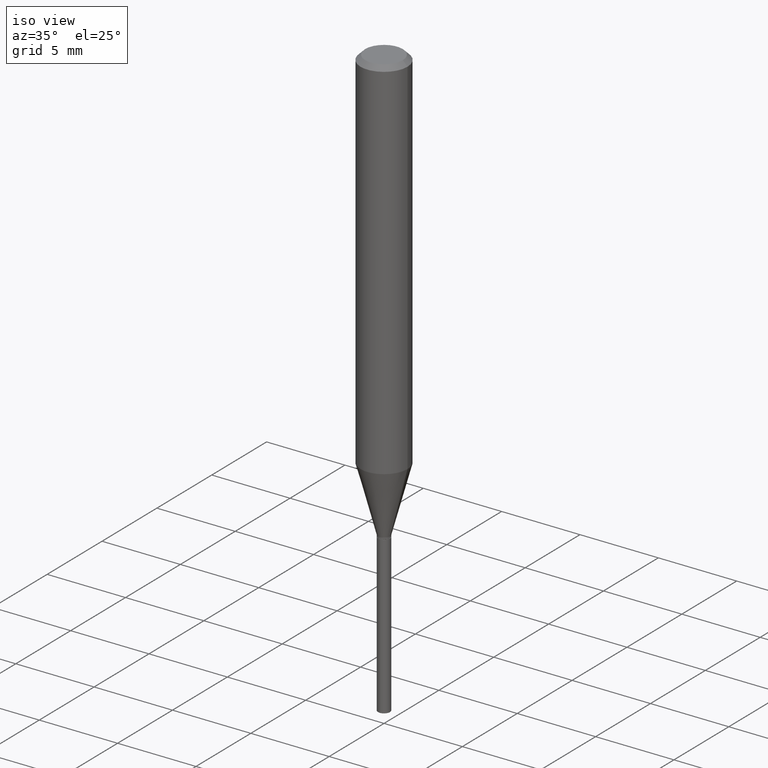
[diagram: clean part render]
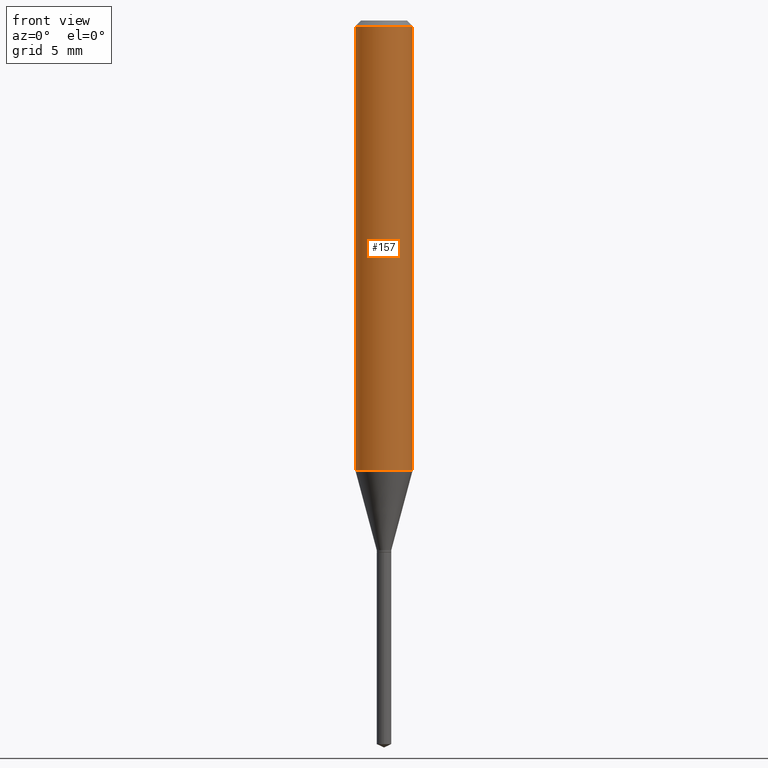
[diagram: tour spotlight — one face highlighted and labeled with its STEP entity id]
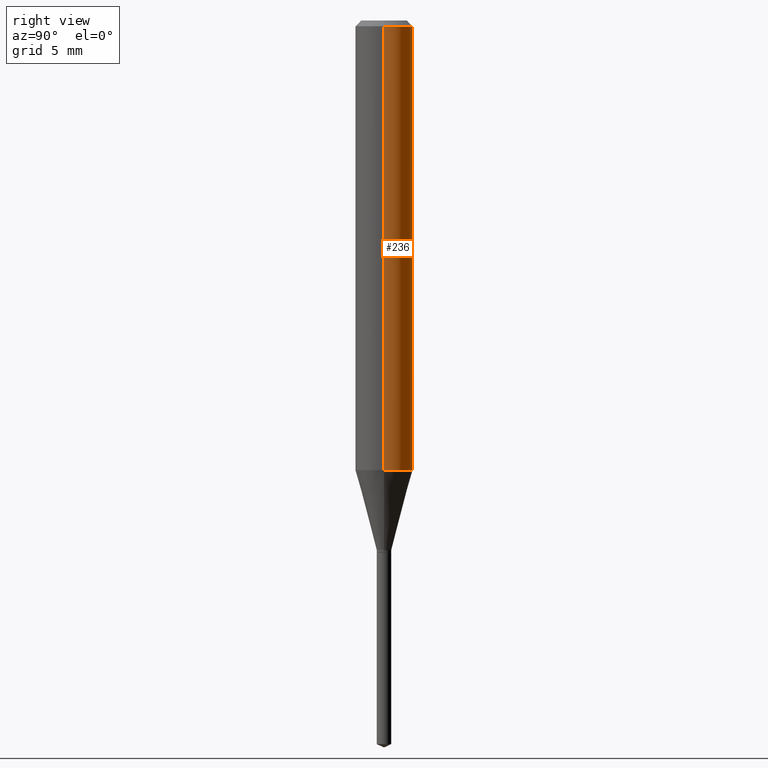
[diagram: tour spotlight — one face highlighted and labeled with its STEP entity id]
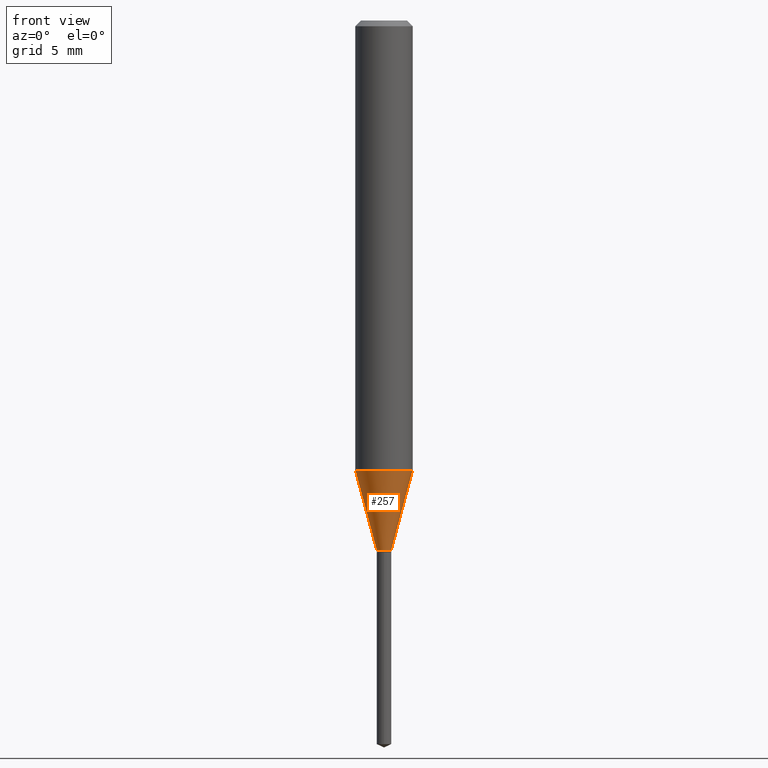
[diagram: tour spotlight — one face highlighted and labeled with its STEP entity id]
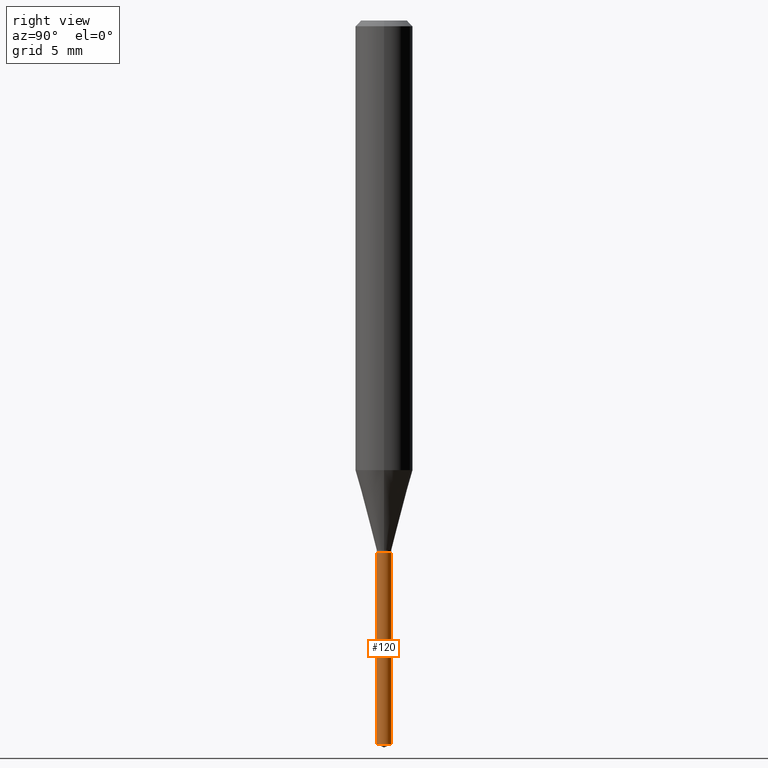
[diagram: tour spotlight — one face highlighted and labeled with its STEP entity id]
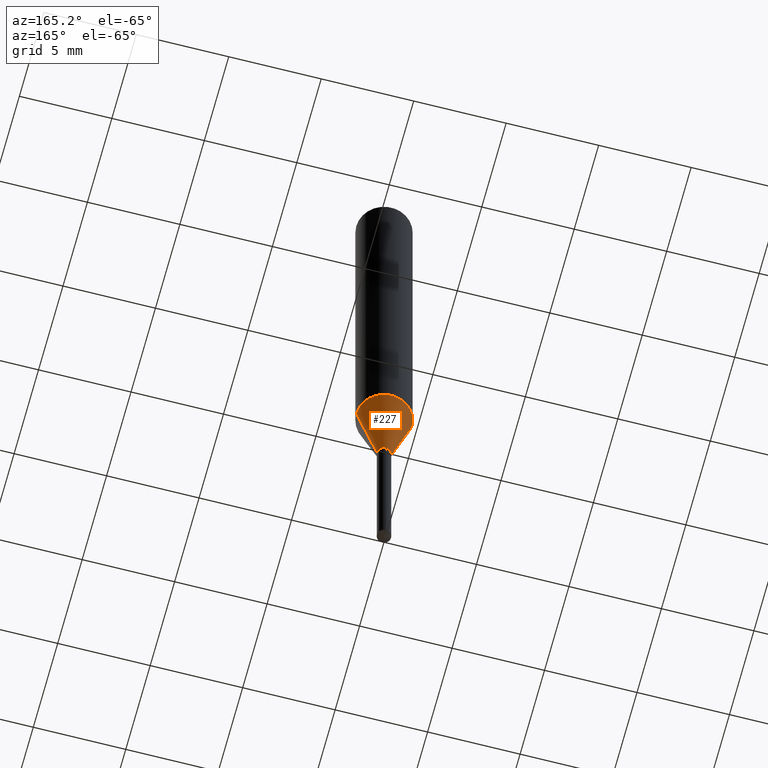
[diagram: tour spotlight — one face highlighted and labeled with its STEP entity id]
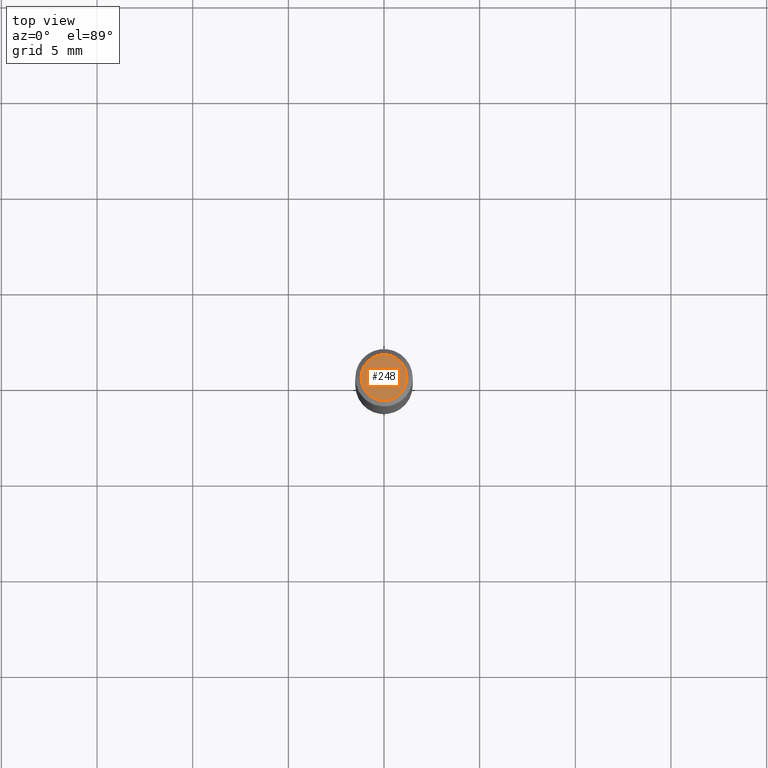
[diagram: tour spotlight — one face highlighted and labeled with its STEP entity id]
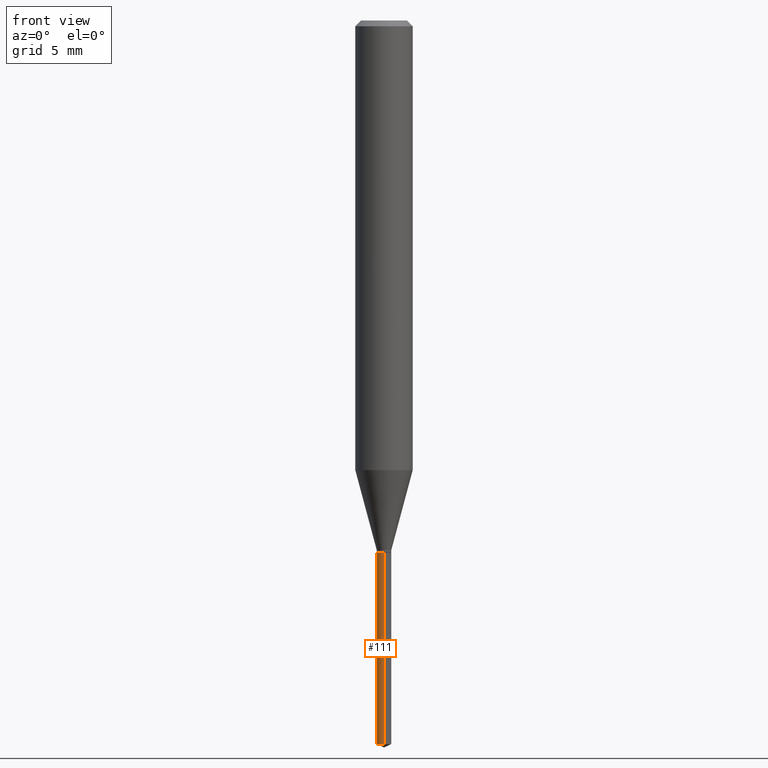
[diagram: tour spotlight — one face highlighted and labeled with its STEP entity id]
A machine part: a face-by-face anatomy tour. The part has 17 B-rep faces; the first image is the clean iso view, then the 7 largest visible faces are spotlighted one at a time (largest first), each with its STEP entity span.

Face 1 — front view, entity #157. In plain terms, the highlighted cylindrical surface (edge-blend (fillet) strip) has radius 1.4999 mm, axis along (-0, 0, 1).
Definition (entity closure, byte-faithful):
#1 = DIRECTION ( 'NONE',  ( 1.000000000000000000, -6.982962677686266711E-15, 0.000000000000000000 ) ) ;
#13 = CARTESIAN_POINT ( 'NONE',  ( -0.05905000000000011628, -2.811499162287049151E-15, -0.9254165593862120343 ) ) ;
#19 = CYLINDRICAL_SURFACE ( 'NONE', #134, 0.05905000000000006077 ) ;
#30 = CARTESIAN_POINT ( 'NONE',  ( 2.263077328706156631E-29, -3.231074647753389433E-15, -0.9254165593862120343 ) ) ;
#41 = VERTEX_POINT ( 'NONE', #13 ) ;
#54 = EDGE_LOOP ( 'NONE', ( #136, #186, #318, #77 ) ) ;
#62 = CARTESIAN_POINT ( 'NONE',  ( 0.000000000000000000, 0.000000000000000000, 0.000000000000000000 ) ) ;
#69 = DIRECTION ( 'NONE',  ( -2.445468806185136597E-29, 3.491481338843145583E-15, 1.000000000000000000 ) ) ;
#75 = VERTEX_POINT ( 'NONE', #472 ) ;
#77 = ORIENTED_EDGE ( 'NONE', *, *, #160, .F. ) ;
#84 = AXIS2_PLACEMENT_3D ( 'NONE', #30, #184, #1 ) ;
#134 = AXIS2_PLACEMENT_3D ( 'NONE', #62, #488, #483 ) ;
#136 = ORIENTED_EDGE ( 'NONE', *, *, #376, .F. ) ;
#148 = DIRECTION ( 'NONE',  ( 1.000000000000000000, -6.982962677686266711E-15, 0.000000000000000000 ) ) ;
#157 = ADVANCED_FACE ( 'NONE', ( #256 ), #19, .T. ) ;
#160 = EDGE_CURVE ( 'NONE', #75, #453, #346, .T. ) ;
#163 = LINE ( 'NONE', #245, #489 ) ;
#181 = CARTESIAN_POINT ( 'NONE',  ( 0.05904999999999999832, -4.535783407291118600E-16, -0.01181000000000007044 ) ) ;
#184 = DIRECTION ( 'NONE',  ( -2.445468806185136597E-29, 3.491481338843145583E-15, 1.000000000000000000 ) ) ;
#186 = ORIENTED_EDGE ( 'NONE', *, *, #331, .T. ) ;
#222 = CIRCLE ( 'NONE', #84, 0.05905000000000011628 ) ;
#225 = CARTESIAN_POINT ( 'NONE',  ( 0.05905000000000006077, -4.123439461173744764E-16, 2.879382386107503023E-30 ) ) ;
#226 = CARTESIAN_POINT ( 'NONE',  ( 2.888098660104663766E-31, -4.123439461173779647E-17, -0.01181000000000007044 ) ) ;
#245 = CARTESIAN_POINT ( 'NONE',  ( -0.05905000000000006077, 4.195754854663395916E-16, -2.904631170795524694E-30 ) ) ;
#250 = DIRECTION ( 'NONE',  ( -2.445468806185136877E-29, 3.491481338843145188E-15, 1.000000000000000000 ) ) ;
#256 = FACE_OUTER_BOUND ( 'NONE', #54, .T. ) ;
#264 = DIRECTION ( 'NONE',  ( -2.445468806185136877E-29, 3.491481338843145188E-15, 1.000000000000000000 ) ) ;
#290 = EDGE_CURVE ( 'NONE', #348, #453, #405, .T. ) ;
#318 = ORIENTED_EDGE ( 'NONE', *, *, #290, .T. ) ;
#331 = EDGE_CURVE ( 'NONE', #41, #348, #222, .T. ) ;
#346 = CIRCLE ( 'NONE', #408, 0.05904999999999999832 ) ;
#348 = VERTEX_POINT ( 'NONE', #471 ) ;
#376 = EDGE_CURVE ( 'NONE', #41, #75, #163, .T. ) ;
#393 = VECTOR ( 'NONE', #264, 39.37007874015748143 ) ;
#405 = LINE ( 'NONE', #225, #393 ) ;
#408 = AXIS2_PLACEMENT_3D ( 'NONE', #226, #69, #148 ) ;
#453 = VERTEX_POINT ( 'NONE', #181 ) ;
#471 = CARTESIAN_POINT ( 'NONE',  ( 0.05905000000000011628, -3.643418593870763564E-15, -0.9254165593862120343 ) ) ;
#472 = CARTESIAN_POINT ( 'NONE',  ( -0.05904999999999999832, -1.216579035716223102E-15, -0.01181000000000007044 ) ) ;
#483 = DIRECTION ( 'NONE',  ( 1.000000000000000000, -6.982962677686266711E-15, 4.876176775795935793E-29 ) ) ;
#488 = DIRECTION ( 'NONE',  ( -2.445468806185136597E-29, 3.491481338843145583E-15, 1.000000000000000000 ) ) ;
#489 = VECTOR ( 'NONE', #250, 39.37007874015748143 ) ;

Face 2 — right view, entity #236. In plain terms, the highlighted cylindrical surface (edge-blend (fillet) strip) has radius 1.4999 mm, axis along (-0, 0, 1).
Definition (entity closure, byte-faithful):
#6 = CIRCLE ( 'NONE', #334, 0.05904999999999999832 ) ;
#12 = FACE_OUTER_BOUND ( 'NONE', #224, .T. ) ;
#13 = CARTESIAN_POINT ( 'NONE',  ( -0.05905000000000011628, -2.811499162287049151E-15, -0.9254165593862120343 ) ) ;
#16 = DIRECTION ( 'NONE',  ( -2.445468806185136597E-29, 3.491481338843145583E-15, 1.000000000000000000 ) ) ;
#41 = VERTEX_POINT ( 'NONE', #13 ) ;
#49 = ORIENTED_EDGE ( 'NONE', *, *, #290, .F. ) ;
#75 = VERTEX_POINT ( 'NONE', #472 ) ;
#81 = EDGE_CURVE ( 'NONE', #453, #75, #6, .T. ) ;
#163 = LINE ( 'NONE', #245, #489 ) ;
#164 = DIRECTION ( 'NONE',  ( -2.445468806185136597E-29, 3.491481338843145583E-15, 1.000000000000000000 ) ) ;
#166 = DIRECTION ( 'NONE',  ( -2.445468806185136597E-29, 3.491481338843145583E-15, 1.000000000000000000 ) ) ;
#170 = DIRECTION ( 'NONE',  ( 1.000000000000000000, -6.982962677686266711E-15, 0.000000000000000000 ) ) ;
#171 = CARTESIAN_POINT ( 'NONE',  ( 0.000000000000000000, 0.000000000000000000, 0.000000000000000000 ) ) ;
#181 = CARTESIAN_POINT ( 'NONE',  ( 0.05904999999999999832, -4.535783407291118600E-16, -0.01181000000000007044 ) ) ;
#224 = EDGE_LOOP ( 'NONE', ( #280, #386, #277, #49 ) ) ;
#225 = CARTESIAN_POINT ( 'NONE',  ( 0.05905000000000006077, -4.123439461173744764E-16, 2.879382386107503023E-30 ) ) ;
#233 = AXIS2_PLACEMENT_3D ( 'NONE', #171, #16, #389 ) ;
#236 = ADVANCED_FACE ( 'NONE', ( #12 ), #286, .T. ) ;
#245 = CARTESIAN_POINT ( 'NONE',  ( -0.05905000000000006077, 4.195754854663395916E-16, -2.904631170795524694E-30 ) ) ;
#250 = DIRECTION ( 'NONE',  ( -2.445468806185136877E-29, 3.491481338843145188E-15, 1.000000000000000000 ) ) ;
#259 = CARTESIAN_POINT ( 'NONE',  ( 2.888098660104663766E-31, -4.123439461173779647E-17, -0.01181000000000007044 ) ) ;
#264 = DIRECTION ( 'NONE',  ( -2.445468806185136877E-29, 3.491481338843145188E-15, 1.000000000000000000 ) ) ;
#277 = ORIENTED_EDGE ( 'NONE', *, *, #81, .F. ) ;
#280 = ORIENTED_EDGE ( 'NONE', *, *, #475, .T. ) ;
#283 = DIRECTION ( 'NONE',  ( 1.000000000000000000, -6.982962677686266711E-15, 0.000000000000000000 ) ) ;
#286 = CYLINDRICAL_SURFACE ( 'NONE', #233, 0.05905000000000006077 ) ;
#290 = EDGE_CURVE ( 'NONE', #348, #453, #405, .T. ) ;
#334 = AXIS2_PLACEMENT_3D ( 'NONE', #259, #166, #170 ) ;
#335 = CARTESIAN_POINT ( 'NONE',  ( 2.263077328706156631E-29, -3.231074647753389433E-15, -0.9254165593862120343 ) ) ;
#347 = CIRCLE ( 'NONE', #410, 0.05905000000000011628 ) ;
#348 = VERTEX_POINT ( 'NONE', #471 ) ;
#376 = EDGE_CURVE ( 'NONE', #41, #75, #163, .T. ) ;
#386 = ORIENTED_EDGE ( 'NONE', *, *, #376, .T. ) ;
#389 = DIRECTION ( 'NONE',  ( 1.000000000000000000, -6.982962677686266711E-15, 4.876176775795935793E-29 ) ) ;
#393 = VECTOR ( 'NONE', #264, 39.37007874015748143 ) ;
#405 = LINE ( 'NONE', #225, #393 ) ;
#410 = AXIS2_PLACEMENT_3D ( 'NONE', #335, #164, #283 ) ;
#453 = VERTEX_POINT ( 'NONE', #181 ) ;
#471 = CARTESIAN_POINT ( 'NONE',  ( 0.05905000000000011628, -3.643418593870763564E-15, -0.9254165593862120343 ) ) ;
#472 = CARTESIAN_POINT ( 'NONE',  ( -0.05904999999999999832, -1.216579035716223102E-15, -0.01181000000000007044 ) ) ;
#475 = EDGE_CURVE ( 'NONE', #348, #41, #347, .T. ) ;
#489 = VECTOR ( 'NONE', #250, 39.37007874015748143 ) ;

Face 3 — front view, entity #257. In plain terms, the highlighted conical surface has half-angle 15 deg.
Definition (entity closure, byte-faithful):
#1 = DIRECTION ( 'NONE',  ( 1.000000000000000000, -6.982962677686266711E-15, 0.000000000000000000 ) ) ;
#4 = CARTESIAN_POINT ( 'NONE',  ( 0.01494999999999994424, -3.910109951370437521E-15, -1.089999999999999858 ) ) ;
#13 = CARTESIAN_POINT ( 'NONE',  ( -0.05905000000000011628, -2.811499162287049151E-15, -0.9254165593862120343 ) ) ;
#20 = VECTOR ( 'NONE', #221, 39.37007874015748854 ) ;
#25 = CARTESIAN_POINT ( 'NONE',  ( 2.665560998741798263E-29, -3.805714659339028452E-15, -1.089999999999999858 ) ) ;
#30 = CARTESIAN_POINT ( 'NONE',  ( 2.263077328706156631E-29, -3.231074647753389433E-15, -0.9254165593862120343 ) ) ;
#35 = ORIENTED_EDGE ( 'NONE', *, *, #67, .T. ) ;
#41 = VERTEX_POINT ( 'NONE', #13 ) ;
#63 = CARTESIAN_POINT ( 'NONE',  ( -0.01494999999999994424, -3.699488520342893341E-15, -1.089999999999999858 ) ) ;
#67 = EDGE_CURVE ( 'NONE', #465, #348, #208, .T. ) ;
#84 = AXIS2_PLACEMENT_3D ( 'NONE', #30, #184, #1 ) ;
#92 = AXIS2_PLACEMENT_3D ( 'NONE', #25, #482, #265 ) ;
#101 = DIRECTION ( 'NONE',  ( 1.000000000000000000, -6.982962677686271444E-15, 0.000000000000000000 ) ) ;
#142 = CARTESIAN_POINT ( 'NONE',  ( 2.665560998741798263E-29, -3.805714659339028452E-15, -1.089999999999999858 ) ) ;
#177 = EDGE_CURVE ( 'NONE', #241, #465, #261, .T. ) ;
#179 = AXIS2_PLACEMENT_3D ( 'NONE', #142, #478, #101 ) ;
#184 = DIRECTION ( 'NONE',  ( -2.445468806185136597E-29, 3.491481338843145583E-15, 1.000000000000000000 ) ) ;
#193 = ORIENTED_EDGE ( 'NONE', *, *, #205, .F. ) ;
#205 = EDGE_CURVE ( 'NONE', #241, #41, #406, .T. ) ;
#206 = CARTESIAN_POINT ( 'NONE',  ( -0.01494999999999994424, -3.706471483020580144E-15, -1.089999999999999858 ) ) ;
#208 = LINE ( 'NONE', #321, #300 ) ;
#221 = DIRECTION ( 'NONE',  ( -0.2588190451025212391, 5.211531920934549464E-15, 0.9659258262890679791 ) ) ;
#222 = CIRCLE ( 'NONE', #84, 0.05905000000000011628 ) ;
#241 = VERTEX_POINT ( 'NONE', #206 ) ;
#257 = ADVANCED_FACE ( 'NONE', ( #480 ), #312, .T. ) ;
#261 = CIRCLE ( 'NONE', #92, 0.01494999999999994424 ) ;
#265 = DIRECTION ( 'NONE',  ( 1.000000000000000000, -6.982962677686271444E-15, 0.000000000000000000 ) ) ;
#300 = VECTOR ( 'NONE', #364, 39.37007874015748854 ) ;
#309 = ORIENTED_EDGE ( 'NONE', *, *, #177, .T. ) ;
#312 = CONICAL_SURFACE ( 'NONE', #179, 0.01494999999999994424, 0.2617993877991499629 ) ;
#321 = CARTESIAN_POINT ( 'NONE',  ( 0.01494999999999994424, -3.910109951370437521E-15, -1.089999999999999858 ) ) ;
#331 = EDGE_CURVE ( 'NONE', #41, #348, #222, .T. ) ;
#345 = EDGE_LOOP ( 'NONE', ( #193, #309, #35, #350 ) ) ;
#348 = VERTEX_POINT ( 'NONE', #471 ) ;
#350 = ORIENTED_EDGE ( 'NONE', *, *, #331, .F. ) ;
#364 = DIRECTION ( 'NONE',  ( 0.2588190451025212391, 1.565188264969622362E-15, 0.9659258262890679791 ) ) ;
#406 = LINE ( 'NONE', #63, #20 ) ;
#465 = VERTEX_POINT ( 'NONE', #4 ) ;
#471 = CARTESIAN_POINT ( 'NONE',  ( 0.05905000000000011628, -3.643418593870763564E-15, -0.9254165593862120343 ) ) ;
#478 = DIRECTION ( 'NONE',  ( -2.445468806185136597E-29, 3.491481338843145583E-15, 1.000000000000000000 ) ) ;
#480 = FACE_OUTER_BOUND ( 'NONE', #345, .T. ) ;
#482 = DIRECTION ( 'NONE',  ( -2.445468806185136597E-29, 3.491481338843145583E-15, 1.000000000000000000 ) ) ;

Face 4 — right view, entity #120. In plain terms, the highlighted cylindrical surface (edge-blend (fillet) strip) has radius 0.3797 mm, axis along (-0, 0, 1).
Definition (entity closure, byte-faithful):
#32 = AXIS2_PLACEMENT_3D ( 'NONE', #220, #307, #303 ) ;
#79 = VERTEX_POINT ( 'NONE', #473 ) ;
#88 = CARTESIAN_POINT ( 'NONE',  ( 1.062261389961617356E-16, 0.01494999999999617815, -1.094499999999999806 ) ) ;
#91 = LINE ( 'NONE', #88, #178 ) ;
#98 = CARTESIAN_POINT ( 'NONE',  ( 1.062261389961713869E-16, 0.01494999999999480425, -1.489128700510583103 ) ) ;
#100 = CIRCLE ( 'NONE', #461, 0.01494999999999999975 ) ;
#114 = AXIS2_PLACEMENT_3D ( 'NONE', #217, #294, #477 ) ;
#120 = ADVANCED_FACE ( 'NONE', ( #353 ), #287, .T. ) ;
#121 = ORIENTED_EDGE ( 'NONE', *, *, #426, .F. ) ;
#129 = ORIENTED_EDGE ( 'NONE', *, *, #137, .T. ) ;
#135 = VECTOR ( 'NONE', #246, 39.37007874015748143 ) ;
#137 = EDGE_CURVE ( 'NONE', #270, #380, #91, .T. ) ;
#144 = LINE ( 'NONE', #192, #135 ) ;
#168 = EDGE_CURVE ( 'NONE', #79, #380, #260, .T. ) ;
#169 = ORIENTED_EDGE ( 'NONE', *, *, #295, .T. ) ;
#178 = VECTOR ( 'NONE', #213, 39.37007874015748143 ) ;
#180 = CARTESIAN_POINT ( 'NONE',  ( 3.641614592596127873E-29, -5.199269641379409122E-15, -1.489128700510583103 ) ) ;
#192 = CARTESIAN_POINT ( 'NONE',  ( -1.043952920313829132E-16, -0.01495000000000382308, -1.094499999999999806 ) ) ;
#203 = CARTESIAN_POINT ( 'NONE',  ( 1.062261389961714608E-16, 0.01494999999999617989, -1.094499999999999806 ) ) ;
#213 = DIRECTION ( 'NONE',  ( -2.445460715294871217E-29, 3.491492925458510144E-15, 1.000000000000000000 ) ) ;
#217 = CARTESIAN_POINT ( 'NONE',  ( 2.676565608369631794E-29, -3.821426325363822773E-15, -1.094499999999999806 ) ) ;
#220 = CARTESIAN_POINT ( 'NONE',  ( 2.676565608369631794E-29, -3.821426325363822773E-15, -1.094499999999999806 ) ) ;
#246 = DIRECTION ( 'NONE',  ( -2.445460715294871217E-29, 3.491492925458510144E-15, 1.000000000000000000 ) ) ;
#260 = CIRCLE ( 'NONE', #32, 0.01494999999999999975 ) ;
#270 = VERTEX_POINT ( 'NONE', #98 ) ;
#287 = CYLINDRICAL_SURFACE ( 'NONE', #114, 0.01494999999999999975 ) ;
#294 = DIRECTION ( 'NONE',  ( -2.445460715294871217E-29, 3.491492925458510144E-15, 1.000000000000000000 ) ) ;
#295 = EDGE_CURVE ( 'NONE', #422, #270, #100, .T. ) ;
#303 = DIRECTION ( 'NONE',  ( -6.982962677686266711E-15, -1.000000000000000000, 0.000000000000000000 ) ) ;
#307 = DIRECTION ( 'NONE',  ( -2.445460715294871217E-29, 3.491492925458510144E-15, 1.000000000000000000 ) ) ;
#311 = EDGE_LOOP ( 'NONE', ( #169, #129, #315, #121 ) ) ;
#315 = ORIENTED_EDGE ( 'NONE', *, *, #168, .F. ) ;
#353 = FACE_OUTER_BOUND ( 'NONE', #311, .T. ) ;
#380 = VERTEX_POINT ( 'NONE', #203 ) ;
#422 = VERTEX_POINT ( 'NONE', #487 ) ;
#426 = EDGE_CURVE ( 'NONE', #422, #79, #144, .T. ) ;
#450 = DIRECTION ( 'NONE',  ( -2.445460715294871217E-29, 3.491492925458510144E-15, 1.000000000000000000 ) ) ;
#461 = AXIS2_PLACEMENT_3D ( 'NONE', #180, #450, #476 ) ;
#473 = CARTESIAN_POINT ( 'NONE',  ( -1.043952920313829132E-16, -0.01495000000000382308, -1.094499999999999806 ) ) ;
#476 = DIRECTION ( 'NONE',  ( -6.982962677686266711E-15, -1.000000000000000000, 0.000000000000000000 ) ) ;
#477 = DIRECTION ( 'NONE',  ( -6.982962677686266711E-15, -1.000000000000000000, 0.000000000000000000 ) ) ;
#487 = CARTESIAN_POINT ( 'NONE',  ( -1.043952920313732866E-16, -0.01495000000000520218, -1.489128700510583103 ) ) ;

Face 5 — auxiliary view, entity #227. In plain terms, the highlighted conical surface has half-angle 15 deg.
Definition (entity closure, byte-faithful):
#4 = CARTESIAN_POINT ( 'NONE',  ( 0.01494999999999994424, -3.910109951370437521E-15, -1.089999999999999858 ) ) ;
#9 = ORIENTED_EDGE ( 'NONE', *, *, #475, .F. ) ;
#13 = CARTESIAN_POINT ( 'NONE',  ( -0.05905000000000011628, -2.811499162287049151E-15, -0.9254165593862120343 ) ) ;
#20 = VECTOR ( 'NONE', #221, 39.37007874015748854 ) ;
#28 = EDGE_CURVE ( 'NONE', #465, #241, #362, .T. ) ;
#41 = VERTEX_POINT ( 'NONE', #13 ) ;
#63 = CARTESIAN_POINT ( 'NONE',  ( -0.01494999999999994424, -3.699488520342893341E-15, -1.089999999999999858 ) ) ;
#67 = EDGE_CURVE ( 'NONE', #465, #348, #208, .T. ) ;
#96 = DIRECTION ( 'NONE',  ( 1.000000000000000000, -6.982962677686271444E-15, 0.000000000000000000 ) ) ;
#106 = ORIENTED_EDGE ( 'NONE', *, *, #67, .F. ) ;
#128 = DIRECTION ( 'NONE',  ( 1.000000000000000000, -6.982962677686271444E-15, 0.000000000000000000 ) ) ;
#156 = ORIENTED_EDGE ( 'NONE', *, *, #28, .T. ) ;
#164 = DIRECTION ( 'NONE',  ( -2.445468806185136597E-29, 3.491481338843145583E-15, 1.000000000000000000 ) ) ;
#205 = EDGE_CURVE ( 'NONE', #241, #41, #406, .T. ) ;
#206 = CARTESIAN_POINT ( 'NONE',  ( -0.01494999999999994424, -3.706471483020580144E-15, -1.089999999999999858 ) ) ;
#208 = LINE ( 'NONE', #321, #300 ) ;
#221 = DIRECTION ( 'NONE',  ( -0.2588190451025212391, 5.211531920934549464E-15, 0.9659258262890679791 ) ) ;
#227 = ADVANCED_FACE ( 'NONE', ( #368 ), #430, .T. ) ;
#229 = EDGE_LOOP ( 'NONE', ( #156, #455, #9, #106 ) ) ;
#231 = AXIS2_PLACEMENT_3D ( 'NONE', #470, #444, #96 ) ;
#241 = VERTEX_POINT ( 'NONE', #206 ) ;
#283 = DIRECTION ( 'NONE',  ( 1.000000000000000000, -6.982962677686266711E-15, 0.000000000000000000 ) ) ;
#300 = VECTOR ( 'NONE', #364, 39.37007874015748854 ) ;
#321 = CARTESIAN_POINT ( 'NONE',  ( 0.01494999999999994424, -3.910109951370437521E-15, -1.089999999999999858 ) ) ;
#335 = CARTESIAN_POINT ( 'NONE',  ( 2.263077328706156631E-29, -3.231074647753389433E-15, -0.9254165593862120343 ) ) ;
#347 = CIRCLE ( 'NONE', #410, 0.05905000000000011628 ) ;
#348 = VERTEX_POINT ( 'NONE', #471 ) ;
#362 = CIRCLE ( 'NONE', #231, 0.01494999999999994424 ) ;
#364 = DIRECTION ( 'NONE',  ( 0.2588190451025212391, 1.565188264969622362E-15, 0.9659258262890679791 ) ) ;
#368 = FACE_OUTER_BOUND ( 'NONE', #229, .T. ) ;
#369 = AXIS2_PLACEMENT_3D ( 'NONE', #409, #469, #128 ) ;
#406 = LINE ( 'NONE', #63, #20 ) ;
#409 = CARTESIAN_POINT ( 'NONE',  ( 2.665560998741798263E-29, -3.805714659339028452E-15, -1.089999999999999858 ) ) ;
#410 = AXIS2_PLACEMENT_3D ( 'NONE', #335, #164, #283 ) ;
#430 = CONICAL_SURFACE ( 'NONE', #369, 0.01494999999999994424, 0.2617993877991499629 ) ;
#444 = DIRECTION ( 'NONE',  ( -2.445468806185136597E-29, 3.491481338843145583E-15, 1.000000000000000000 ) ) ;
#455 = ORIENTED_EDGE ( 'NONE', *, *, #205, .T. ) ;
#465 = VERTEX_POINT ( 'NONE', #4 ) ;
#469 = DIRECTION ( 'NONE',  ( -2.445468806185136597E-29, 3.491481338843145583E-15, 1.000000000000000000 ) ) ;
#470 = CARTESIAN_POINT ( 'NONE',  ( 2.665560998741798263E-29, -3.805714659339028452E-15, -1.089999999999999858 ) ) ;
#471 = CARTESIAN_POINT ( 'NONE',  ( 0.05905000000000011628, -3.643418593870763564E-15, -0.9254165593862120343 ) ) ;
#475 = EDGE_CURVE ( 'NONE', #348, #41, #347, .T. ) ;

Face 6 — top view, entity #248. In plain terms, the highlighted planar face has unit normal (0, -0, -1).
Definition (entity closure, byte-faithful):
#37 = VERTEX_POINT ( 'NONE', #474 ) ;
#42 = VERTEX_POINT ( 'NONE', #398 ) ;
#56 = DIRECTION ( 'NONE',  ( 2.438088387897960049E-29, -3.491481338843145188E-15, -1.000000000000000000 ) ) ;
#74 = CIRCLE ( 'NONE', #293, 0.04724000000000000421 ) ;
#85 = DIRECTION ( 'NONE',  ( 1.000000000000000000, -6.982962677686266711E-15, 4.876185090822587894E-29 ) ) ;
#90 = PLANE ( 'NONE',  #402 ) ;
#141 = AXIS2_PLACEMENT_3D ( 'NONE', #333, #149, #272 ) ;
#149 = DIRECTION ( 'NONE',  ( -2.445468806185136597E-29, 3.491481338843145583E-15, 1.000000000000000000 ) ) ;
#158 = EDGE_LOOP ( 'NONE', ( #385, #284 ) ) ;
#210 = DIRECTION ( 'NONE',  ( -1.000000000000000000, 6.982962677686265922E-15, -4.876176775795935793E-29 ) ) ;
#248 = ADVANCED_FACE ( 'NONE', ( #323 ), #90, .F. ) ;
#272 = DIRECTION ( 'NONE',  ( 1.000000000000000000, -6.982962677686266711E-15, 4.876185090822587894E-29 ) ) ;
#282 = CIRCLE ( 'NONE', #141, 0.04724000000000000421 ) ;
#284 = ORIENTED_EDGE ( 'NONE', *, *, #404, .T. ) ;
#288 = DIRECTION ( 'NONE',  ( -2.445468806185136597E-29, 3.491481338843145583E-15, 1.000000000000000000 ) ) ;
#293 = AXIS2_PLACEMENT_3D ( 'NONE', #391, #288, #85 ) ;
#323 = FACE_OUTER_BOUND ( 'NONE', #158, .T. ) ;
#333 = CARTESIAN_POINT ( 'NONE',  ( 8.265746106709734507E-48, -1.180129479067563789E-33, -3.380025165646692144E-19 ) ) ;
#385 = ORIENTED_EDGE ( 'NONE', *, *, #399, .T. ) ;
#391 = CARTESIAN_POINT ( 'NONE',  ( 8.265746106709734507E-48, -1.180129479067563789E-33, -3.380025165646692144E-19 ) ) ;
#394 = CARTESIAN_POINT ( 'NONE',  ( 4.132873053354867254E-48, -5.900647395337818946E-34, -1.690012582823346072E-19 ) ) ;
#398 = CARTESIAN_POINT ( 'NONE',  ( -0.04724000000000000421, 3.504923541997677355E-16, -3.380025165670481712E-19 ) ) ;
#399 = EDGE_CURVE ( 'NONE', #42, #37, #74, .T. ) ;
#402 = AXIS2_PLACEMENT_3D ( 'NONE', #394, #56, #210 ) ;
#404 = EDGE_CURVE ( 'NONE', #37, #42, #282, .T. ) ;
#474 = CARTESIAN_POINT ( 'NONE',  ( 0.04724000000000000421, -3.852183633974369345E-16, -3.380025165621689721E-19 ) ) ;

Face 7 — front view, entity #111. In plain terms, the highlighted cylindrical surface (edge-blend (fillet) strip) has radius 0.3797 mm, axis along (-0, 0, 1).
Definition (entity closure, byte-faithful):
#14 = AXIS2_PLACEMENT_3D ( 'NONE', #360, #467, #46 ) ;
#46 = DIRECTION ( 'NONE',  ( -6.982962677686266711E-15, -1.000000000000000000, 0.000000000000000000 ) ) ;
#58 = ORIENTED_EDGE ( 'NONE', *, *, #426, .T. ) ;
#59 = ORIENTED_EDGE ( 'NONE', *, *, #355, .F. ) ;
#66 = DIRECTION ( 'NONE',  ( -6.982962677686266711E-15, -1.000000000000000000, 0.000000000000000000 ) ) ;
#72 = AXIS2_PLACEMENT_3D ( 'NONE', #289, #445, #133 ) ;
#79 = VERTEX_POINT ( 'NONE', #473 ) ;
#82 = AXIS2_PLACEMENT_3D ( 'NONE', #145, #305, #66 ) ;
#88 = CARTESIAN_POINT ( 'NONE',  ( 1.062261389961617356E-16, 0.01494999999999617815, -1.094499999999999806 ) ) ;
#91 = LINE ( 'NONE', #88, #178 ) ;
#95 = FACE_OUTER_BOUND ( 'NONE', #296, .T. ) ;
#98 = CARTESIAN_POINT ( 'NONE',  ( 1.062261389961713869E-16, 0.01494999999999480425, -1.489128700510583103 ) ) ;
#111 = ADVANCED_FACE ( 'NONE', ( #95 ), #131, .T. ) ;
#131 = CYLINDRICAL_SURFACE ( 'NONE', #72, 0.01494999999999999975 ) ;
#133 = DIRECTION ( 'NONE',  ( -6.982962677686266711E-15, -1.000000000000000000, 0.000000000000000000 ) ) ;
#135 = VECTOR ( 'NONE', #246, 39.37007874015748143 ) ;
#137 = EDGE_CURVE ( 'NONE', #270, #380, #91, .T. ) ;
#144 = LINE ( 'NONE', #192, #135 ) ;
#145 = CARTESIAN_POINT ( 'NONE',  ( 3.641614592596127873E-29, -5.199269641379409122E-15, -1.489128700510583103 ) ) ;
#167 = EDGE_CURVE ( 'NONE', #270, #422, #382, .T. ) ;
#178 = VECTOR ( 'NONE', #213, 39.37007874015748143 ) ;
#192 = CARTESIAN_POINT ( 'NONE',  ( -1.043952920313829132E-16, -0.01495000000000382308, -1.094499999999999806 ) ) ;
#196 = ORIENTED_EDGE ( 'NONE', *, *, #167, .T. ) ;
#203 = CARTESIAN_POINT ( 'NONE',  ( 1.062261389961714608E-16, 0.01494999999999617989, -1.094499999999999806 ) ) ;
#213 = DIRECTION ( 'NONE',  ( -2.445460715294871217E-29, 3.491492925458510144E-15, 1.000000000000000000 ) ) ;
#246 = DIRECTION ( 'NONE',  ( -2.445460715294871217E-29, 3.491492925458510144E-15, 1.000000000000000000 ) ) ;
#270 = VERTEX_POINT ( 'NONE', #98 ) ;
#289 = CARTESIAN_POINT ( 'NONE',  ( 2.676565608369631794E-29, -3.821426325363822773E-15, -1.094499999999999806 ) ) ;
#296 = EDGE_LOOP ( 'NONE', ( #378, #196, #58, #59 ) ) ;
#305 = DIRECTION ( 'NONE',  ( -2.445460715294871217E-29, 3.491492925458510144E-15, 1.000000000000000000 ) ) ;
#320 = CIRCLE ( 'NONE', #14, 0.01494999999999999975 ) ;
#355 = EDGE_CURVE ( 'NONE', #380, #79, #320, .T. ) ;
#360 = CARTESIAN_POINT ( 'NONE',  ( 2.676565608369631794E-29, -3.821426325363822773E-15, -1.094499999999999806 ) ) ;
#378 = ORIENTED_EDGE ( 'NONE', *, *, #137, .F. ) ;
#380 = VERTEX_POINT ( 'NONE', #203 ) ;
#382 = CIRCLE ( 'NONE', #82, 0.01494999999999999975 ) ;
#422 = VERTEX_POINT ( 'NONE', #487 ) ;
#426 = EDGE_CURVE ( 'NONE', #422, #79, #144, .T. ) ;
#445 = DIRECTION ( 'NONE',  ( -2.445460715294871217E-29, 3.491492925458510144E-15, 1.000000000000000000 ) ) ;
#467 = DIRECTION ( 'NONE',  ( -2.445460715294871217E-29, 3.491492925458510144E-15, 1.000000000000000000 ) ) ;
#473 = CARTESIAN_POINT ( 'NONE',  ( -1.043952920313829132E-16, -0.01495000000000382308, -1.094499999999999806 ) ) ;
#487 = CARTESIAN_POINT ( 'NONE',  ( -1.043952920313732866E-16, -0.01495000000000520218, -1.489128700510583103 ) ) ;